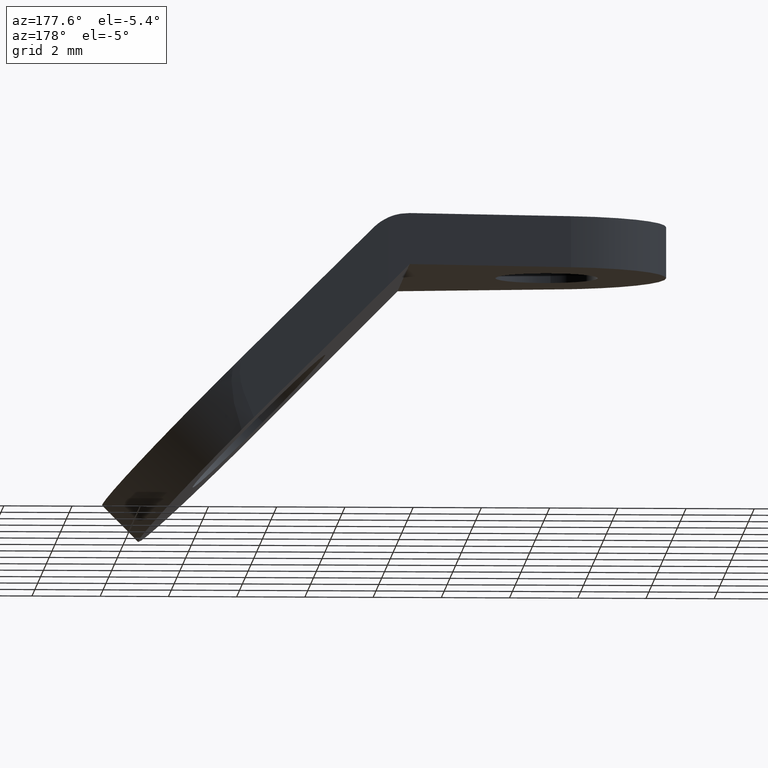
[diagram: clean part render]
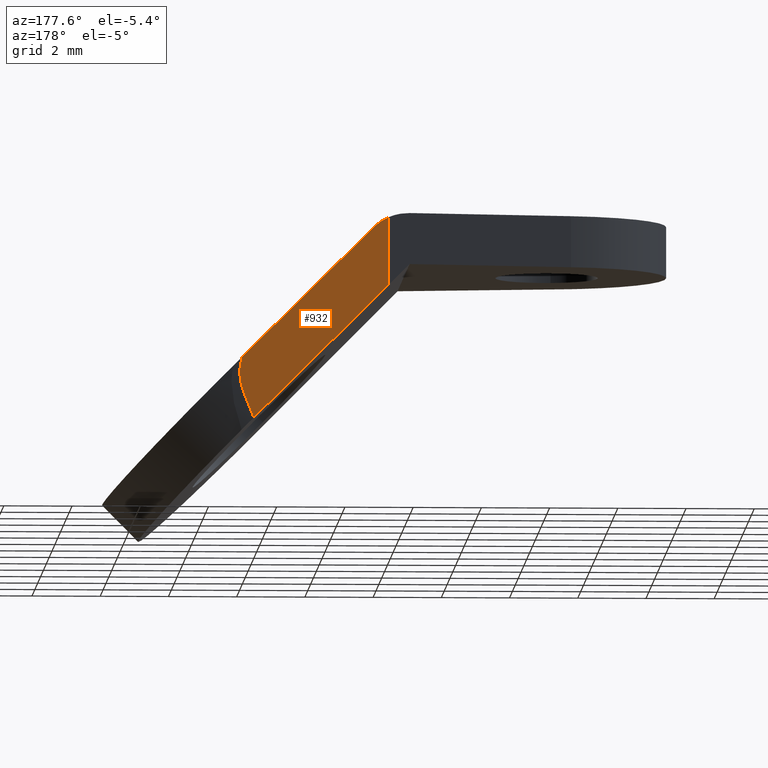
[diagram: same view with one face highlighted and labeled with its STEP entity id]
A machine part, auxiliary view. The second image highlights one B-rep face of the part: STEP entity #932.
In plain terms, the highlighted face is a freeform B-spline surface patch.
Its self-contained STEP definition (entity closure, byte-faithful):
#582=CARTESIAN_POINT('',(8.327313075662550,4.343829457902276,-2.134925994033505));
#583=VERTEX_POINT('',#582);
#604=CARTESIAN_POINT('',(8.327313075662550,4.343829457902276,-0.141004153050684));
#605=VERTEX_POINT('',#604);
#613=CARTESIAN_POINT('',(8.327313075662550,4.343829457902276,-2.134925994033505));
#614=CARTESIAN_POINT('',(8.327313075662550,4.343829457902276,-0.141004153050684));
#615=QUASI_UNIFORM_CURVE('',1,(#613,#614),.UNSPECIFIED.,.F.,.U.);
#616=EDGE_CURVE('',#583,#605,#615,.T.);
#635=CARTESIAN_POINT('',(8.753047760038342,4.406101641292005,-0.439339760038375));
#636=VERTEX_POINT('',#635);
#644=CARTESIAN_POINT('',(8.327313075662540,4.343829457902276,-0.141004153050684));
#645=CARTESIAN_POINT('',(8.566426258357696,4.378804525686051,-0.252718282350700));
#646=CARTESIAN_POINT('',(8.753047760038342,4.406101641292005,-0.439339760038375));
#654=(BOUNDED_CURVE()B_SPLINE_CURVE(2,(#644,#645,#646),.UNSPECIFIED.,.F.,.U.)CURVE()GEOMETRIC_REPRESENTATION_ITEM()QUASI_UNIFORM_CURVE()RATIONAL_B_SPLINE_CURVE((1.0,0.984871443619967,1.0))REPRESENTATION_ITEM(''));
#655=EDGE_CURVE('',#605,#636,#654,.T.);
#803=CARTESIAN_POINT('',(12.287161439871360,4.923036189169120,-6.094773849145070));
#804=VERTEX_POINT('',#803);
#816=CARTESIAN_POINT('',(12.690043658036100,4.981965741820150,-4.593429944960429));
#817=VERTEX_POINT('',#816);
#818=CARTESIAN_POINT('',(12.690043658036119,4.981965741820154,-4.593429944960408));
#819=CARTESIAN_POINT('',(12.785912040157532,4.995988403077153,-5.051458339548870));
#820=CARTESIAN_POINT('',(12.287161439871371,4.923036189169124,-6.094773849145057));
#828=(BOUNDED_CURVE()B_SPLINE_CURVE(2,(#818,#819,#820),.UNSPECIFIED.,.F.,.U.)CURVE()GEOMETRIC_REPRESENTATION_ITEM()QUASI_UNIFORM_CURVE()RATIONAL_B_SPLINE_CURVE((1.0,0.993789063197926,1.0))REPRESENTATION_ITEM(''));
#829=EDGE_CURVE('',#817,#804,#828,.T.);
#882=CARTESIAN_POINT('',(12.631954558184900,4.973469053423909,-4.318246059493920));
#883=VERTEX_POINT('',#882);
#884=CARTESIAN_POINT('',(12.631954558184900,4.973469053423909,-4.318246059493920));
#885=CARTESIAN_POINT('',(12.632781201590729,4.973589966494558,-4.322115799729350));
#886=CARTESIAN_POINT('',(12.633608389006691,4.973710959137524,-4.325985421309387));
#887=CARTESIAN_POINT('',(12.634434488402400,4.973831792635850,-4.329855280200206));
#888=CARTESIAN_POINT('',(12.653179923837101,4.976573686108953,-4.417668187891665));
#889=CARTESIAN_POINT('',(12.671648025696930,4.979275014020304,-4.505541511242265));
#890=CARTESIAN_POINT('',(12.690043658036100,4.981965741820150,-4.593429944960429));
#891=B_SPLINE_CURVE_WITH_KNOTS('',3,(#884,#885,#886,#887,#888,#889,#890),.UNSPECIFIED.,.F.,.U.,(4,3,4),(0.0,0.042209229008657,1.0),.UNSPECIFIED.);
#892=EDGE_CURVE('',#883,#817,#891,.T.);
#911=CARTESIAN_POINT('',(12.924035829426700,5.016191759654115,-6.392164578035692));
#912=CARTESIAN_POINT('',(8.108630212731844,4.311842731499570,-6.392164578035692));
#913=CARTESIAN_POINT('',(12.924035829426700,5.016191759654115,0.156386788763335));
#914=CARTESIAN_POINT('',(8.108630212731844,4.311842731499570,0.156386788763335));
#915=B_SPLINE_SURFACE_WITH_KNOTS('',1,1,((#911,#913),(#912,#914)),.UNSPECIFIED.,.F.,.F.,.U.,(2,2),(2,2),(0.0,4.866645539461304),(0.0,6.548551366799027),.UNSPECIFIED.);
#916=CARTESIAN_POINT('',(12.631954558184900,4.973469053423909,-4.318246059493920));
#917=CARTESIAN_POINT('',(8.753047760038342,4.406101641292005,-0.439339760038375));
#918=QUASI_UNIFORM_CURVE('',1,(#916,#917),.UNSPECIFIED.,.F.,.U.);
#919=EDGE_CURVE('',#883,#636,#918,.T.);
#920=ORIENTED_EDGE('',*,*,#919,.F.);
#921=ORIENTED_EDGE('',*,*,#892,.T.);
#922=ORIENTED_EDGE('',*,*,#829,.T.);
#923=CARTESIAN_POINT('',(12.287161439871360,4.923036189169120,-6.094773849145070));
#924=CARTESIAN_POINT('',(8.327313075662550,4.343829457902276,-2.134925994033505));
#925=QUASI_UNIFORM_CURVE('',1,(#923,#924),.UNSPECIFIED.,.F.,.U.);
#926=EDGE_CURVE('',#804,#583,#925,.T.);
#927=ORIENTED_EDGE('',*,*,#926,.T.);
#928=ORIENTED_EDGE('',*,*,#616,.T.);
#929=ORIENTED_EDGE('',*,*,#655,.T.);
#930=EDGE_LOOP('',(#920,#921,#922,#927,#928,#929));
#931=FACE_OUTER_BOUND('',#930,.T.);
#932=ADVANCED_FACE('',(#931),#915,.T.);